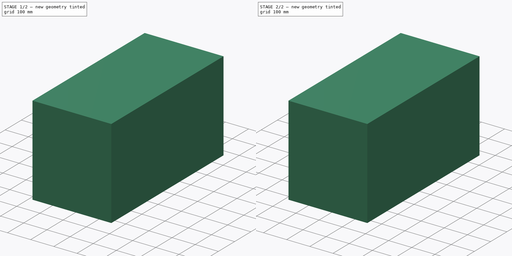
[diagram: build sequence overview — one tinted view per stage of 2, left to right]
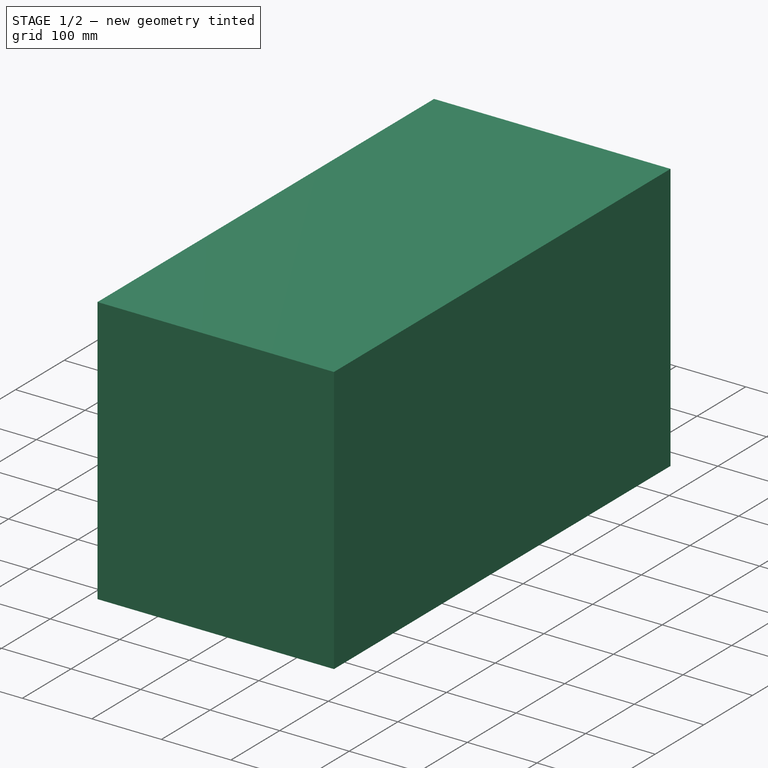
[diagram: stage 1 of 2 — iso view after this stage's code; geometry added in this stage tinted green]
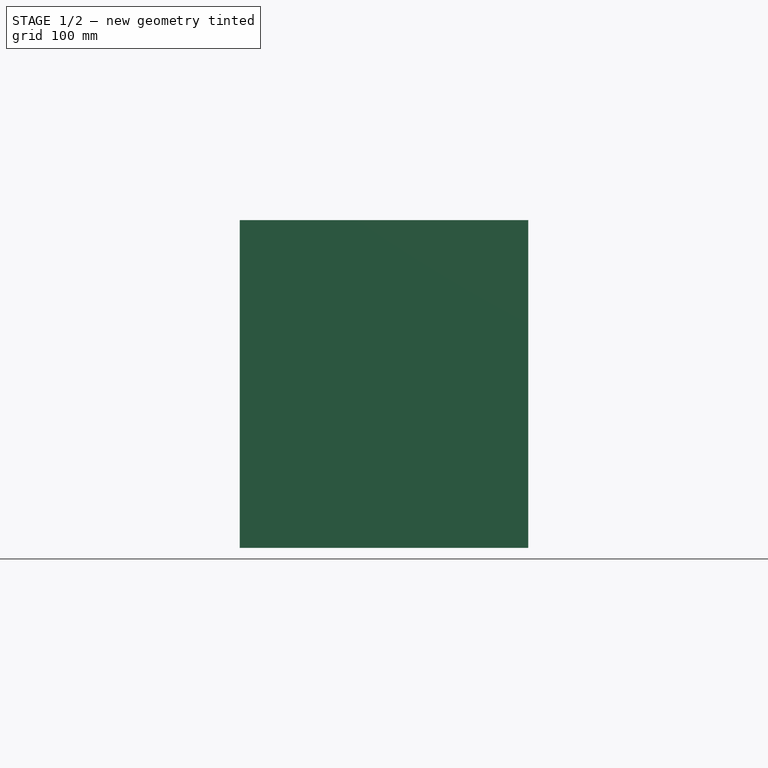
[diagram: stage 1 of 2 — front view after this stage's code; geometry added in this stage tinted green]
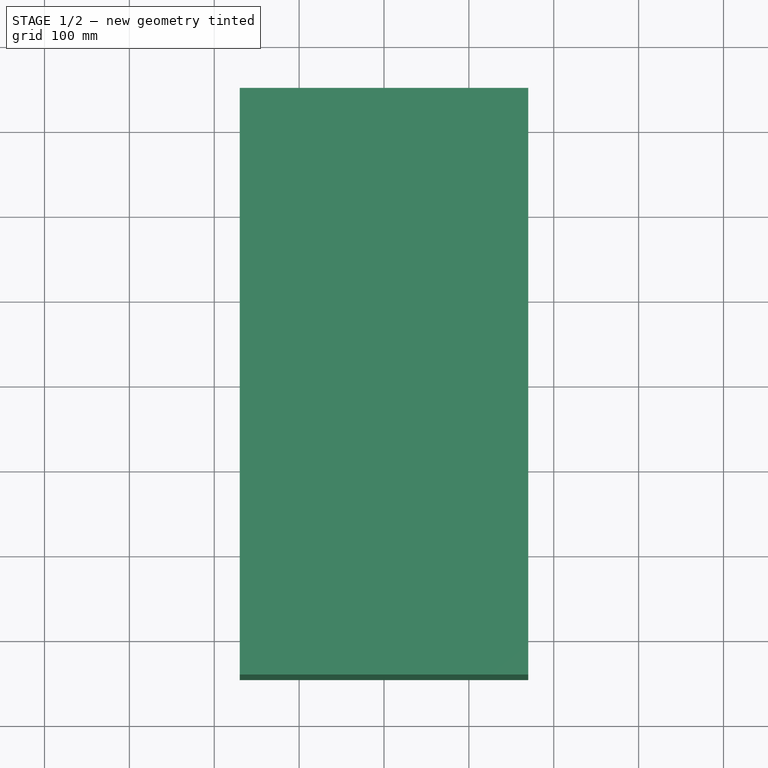
[diagram: stage 1 of 2 — top view after this stage's code; geometry added in this stage tinted green]
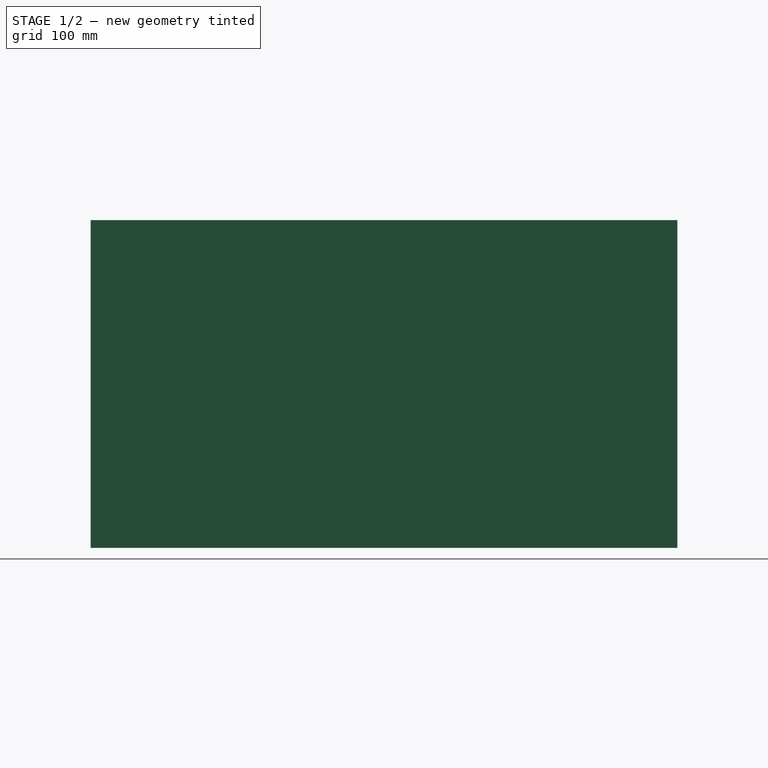
[diagram: stage 1 of 2 — right view after this stage's code; geometry added in this stage tinted green]
FCSTD DOCUMENT  (FreeCAD 1.0R39109 (Git))
Label: simulation_cad
License: All rights reserved
LicenseURL: http://en.wikipedia.org/wiki/All_rights_reserved
objects: Sketcher::SketchObject×2, PartDesign::Pad×2, PartDesign::Body×1
note: 11 computed .brp shape members not serialized (recipe doc carries the construction recipe); baked Part::Feature solids carry a one-line shape summary decoded from their .brp

FEATURE [Sketcher::SketchObject] Sketch
  ArcFitTolerance = 1e-06
  AttachmentSupport = -> [XY_Plane]
  FullyConstrained = true
  MakeInternals = false
  MapMode = 5
  sketch-geometry (5):
    g0: LineSegment StartX=-170 StartY=-345.6 StartZ=0 EndX=170 EndY=-345.6 EndZ=0
    g1: LineSegment StartX=170 StartY=-345.6 StartZ=0 EndX=170 EndY=345.6 EndZ=0
    g2: LineSegment StartX=170 StartY=345.6 StartZ=0 EndX=-170 EndY=345.6 EndZ=0
    g3: LineSegment StartX=-170 StartY=345.6 StartZ=0 EndX=-170 EndY=-345.6 EndZ=0
    g4: GeomPoint [constr] X=0 Y=0 Z=0
  constraints (12):
    c: Coincident(g0,g1)
    c: Coincident(g1,g2)
    c: Coincident(g2,g3)
    c: Coincident(g3,g0)
    c: Horizontal(g0)
    c: Horizontal(g2)
    c: Vertical(g1)
    c: Vertical(g3)
    c: Symmetric(g2,g0,g4)
    c: Coincident(g4,g-1)
    c: DistanceX(g0,g0) = 340
    c: DistanceY(g3,g3) = 691.2
FEATURE [PartDesign::Pad] Pad
  Direction = (0,0,1)
  Length = 386.2
  Length2 = 10
  Profile = -> Sketch
  ReferenceAxis = -> Sketch [N_Axis]
  Refine = true
  Suppressed = false
  Type = 0
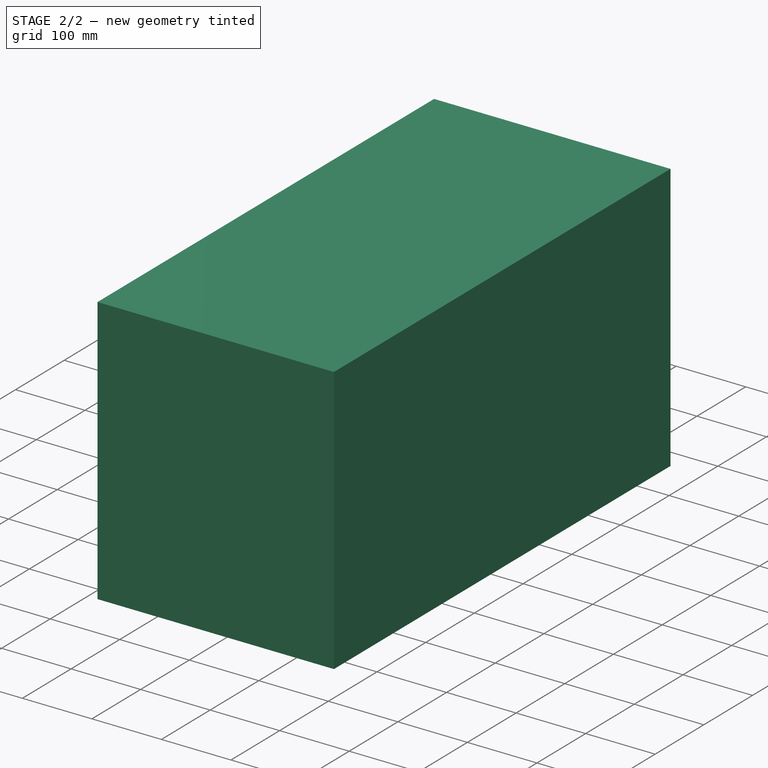
[diagram: stage 2 of 2 — iso view after this stage's code; geometry added in this stage tinted green]
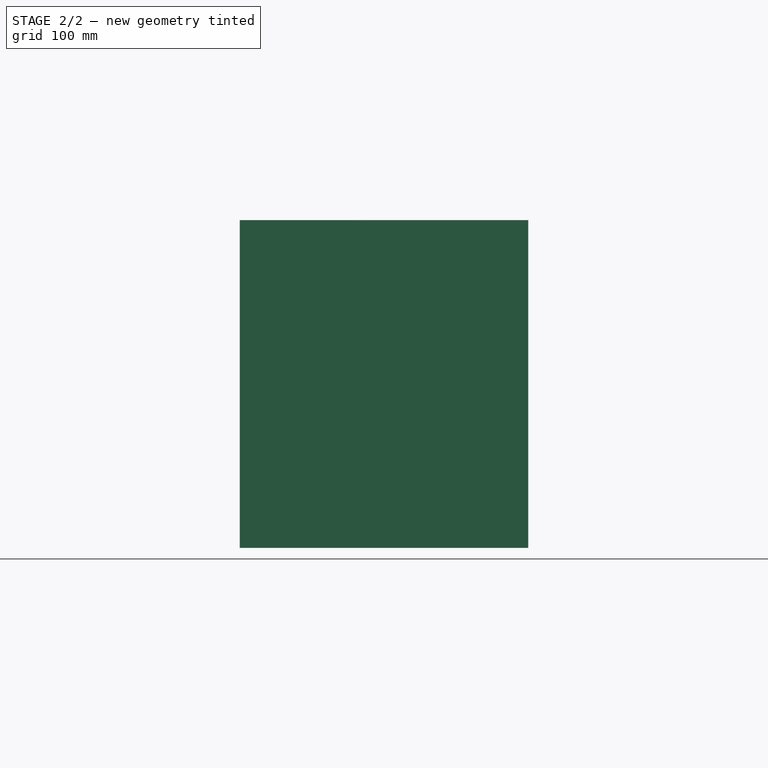
[diagram: stage 2 of 2 — front view after this stage's code; geometry added in this stage tinted green]
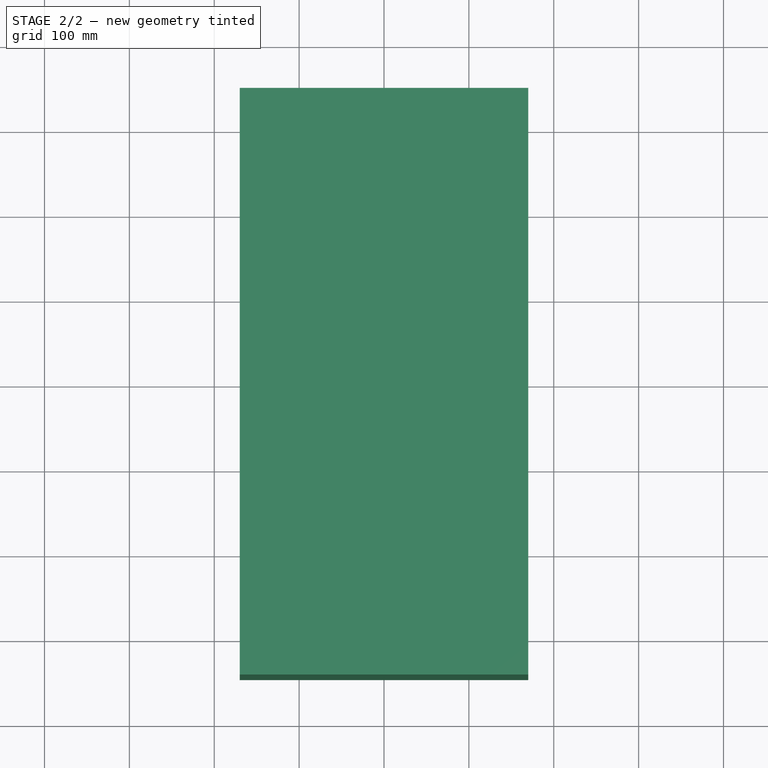
[diagram: stage 2 of 2 — top view after this stage's code; geometry added in this stage tinted green]
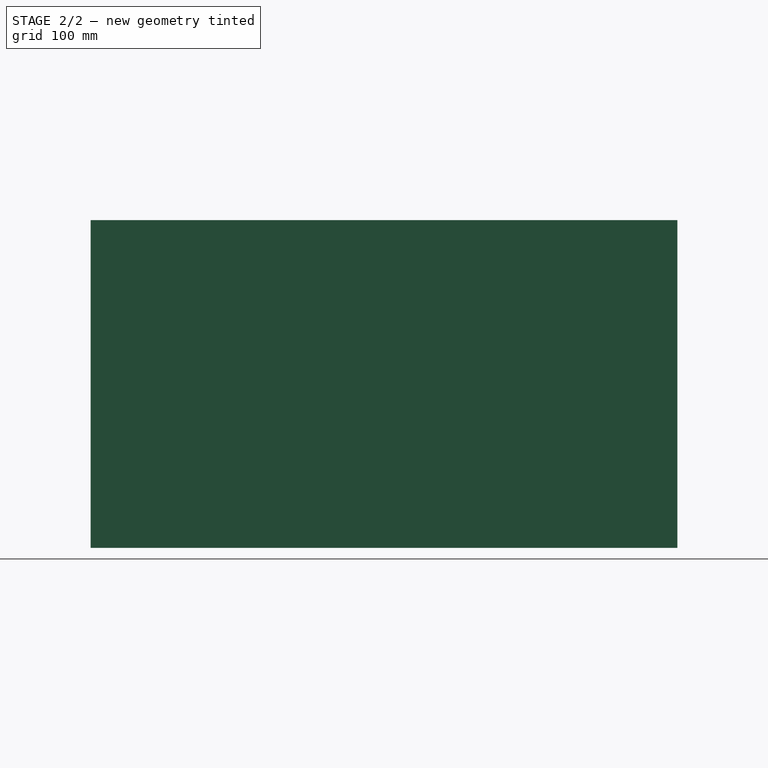
[diagram: stage 2 of 2 — right view after this stage's code; geometry added in this stage tinted green]
FEATURE [Sketcher::SketchObject] Sketch001
  ArcFitTolerance = 1e-06
  AttachmentSupport = -> [Pad]
  ExternalGeometry = -> [Pad]
  FullyConstrained = true
  MakeInternals = false
  MapMode = 5
  Placement = pos=(170,0,0) rot=(0.57735,0.57735,0.57735;2.0944rad)
  sketch-geometry (10):
    g0: Circle CenterX=-223.1 CenterY=294.3 CenterZ=0 NormalX=0 NormalY=0 NormalZ=1 AngleXU=0 Radius=17.4
    g1: Circle CenterX=-223.1 CenterY=122.5 CenterZ=0 NormalX=0 NormalY=0 NormalZ=1 AngleXU=0 Radius=61.5
    g2: Circle CenterX=72.5 CenterY=193.1 CenterZ=0 NormalX=0 NormalY=0 NormalZ=1 AngleXU=0 Radius=127
    g3: LineSegment StartX=265.6 StartY=20 StartZ=0 EndX=325.6 EndY=20 EndZ=0
    g4: LineSegment StartX=325.6 StartY=20 StartZ=0 EndX=325.6 EndY=151 EndZ=0
    g5: LineSegment StartX=325.6 StartY=151 StartZ=0 EndX=265.6 EndY=151 EndZ=0
    g6: LineSegment StartX=265.6 StartY=151 StartZ=0 EndX=265.6 EndY=20 EndZ=0
    g7: GeomPoint [constr] X=295.6 Y=85.5 Z=0
    g8: LineSegment [constr] StartX=-223.1 StartY=122.5 StartZ=0 EndX=-223.1 EndY=294.3 EndZ=0
    g9: LineSegment [constr] StartX=-345.6 StartY=193.1 StartZ=0 EndX=345.6 EndY=193.1 EndZ=0
  constraints (26):
    c: Coincident(g3,g4)
    c: Coincident(g4,g5)
    c: Coincident(g5,g6)
    c: Coincident(g6,g3)
    c: Horizontal(g3)
    c: Horizontal(g5)
    c: Vertical(g4)
    c: Vertical(g6)
    c: Symmetric(g5,g3,g7)
    c: DistanceX(g3,g-4) = 20
    c: DistanceY(g-1,g3) = 20
    c: DistanceY(g4,g4) = 131
    c: DistanceX(g5,g5) = 60
    c: Diameter(g2) = 254
    c: Diameter(g1) = 123
    c: Diameter(g0) = 34.8
    c: Coincident(g8,g1)
    c: Coincident(g8,g0)
    c: Vertical(g8)
    c: DistanceX(g1,g-1) = 223.1
    c: Symmetric(g-5,g-5,g9)
    c: Symmetric(g-3,g-3,g9)
    c: DistanceY(g1,g9) = 70.6
    c: Distance(g0,g9) = 101.2
    c: PointOnObject(g2,g9)
    c: DistanceX(g-1,g2) = 72.5
FEATURE [PartDesign::Pad] Pad001
  BaseFeature = -> Pad
  Direction = (1,0,0)
  Length = 10
  Length2 = 10
  Profile = -> Sketch001
  ReferenceAxis = -> Sketch001 [N_Axis]
  Reversed = true
  Suppressed = false
  Type = 0
FEATURE [PartDesign::Body] Body
  AllowCompound = false
  Group = -> [Sketch,Pad,Sketch001,Pad001]
  Origin = -> Origin
  Tip = -> Pad001
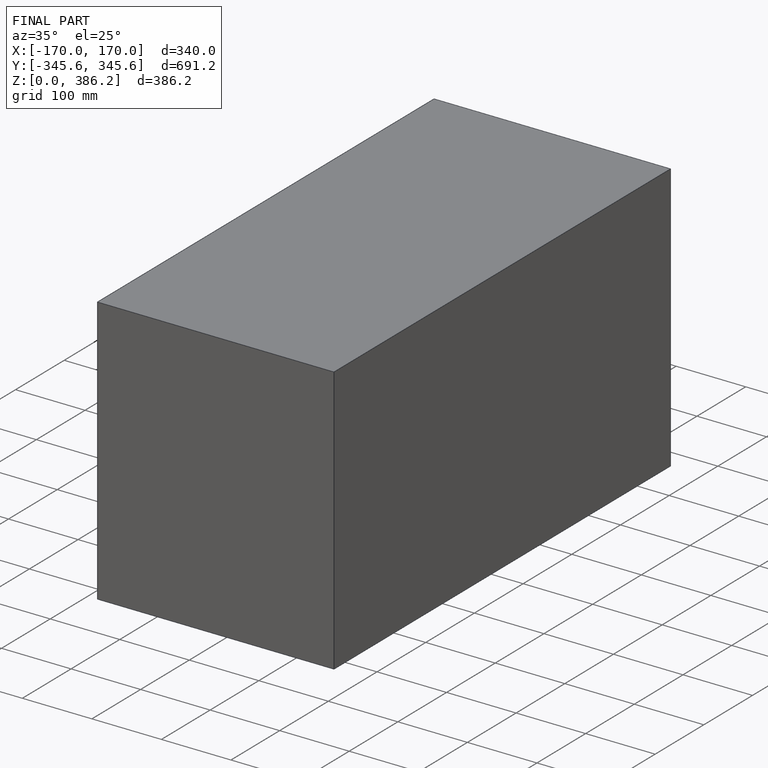
[diagram: finished part — iso view with bounding-box wireframe]
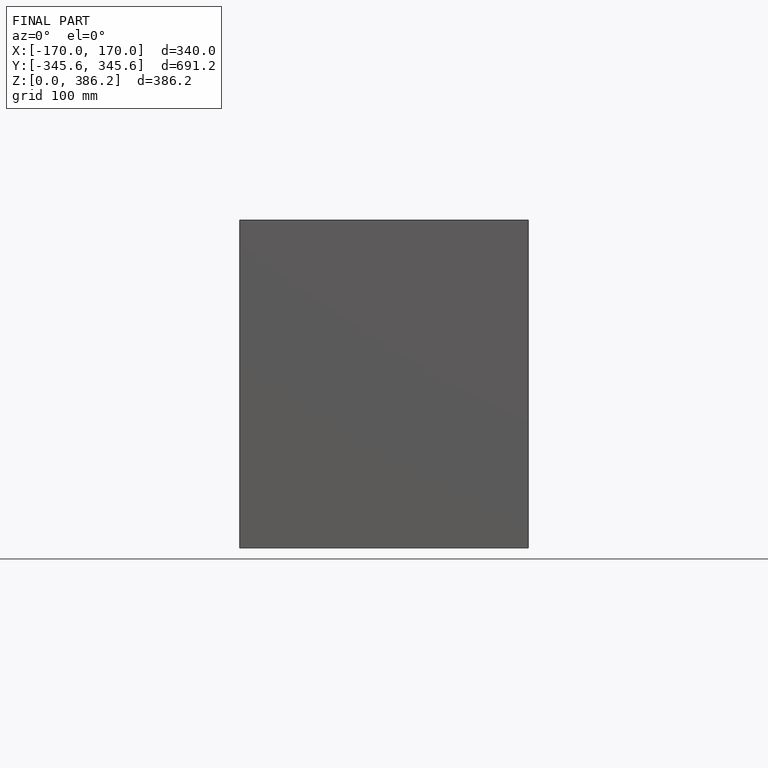
[diagram: finished part — front view with bounding-box wireframe]
